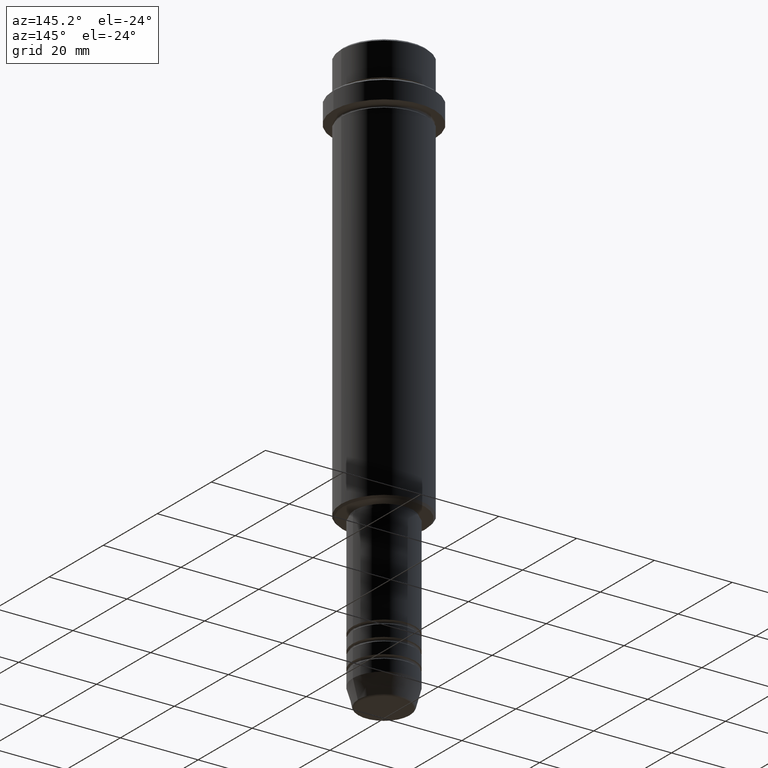
[diagram: clean part render]
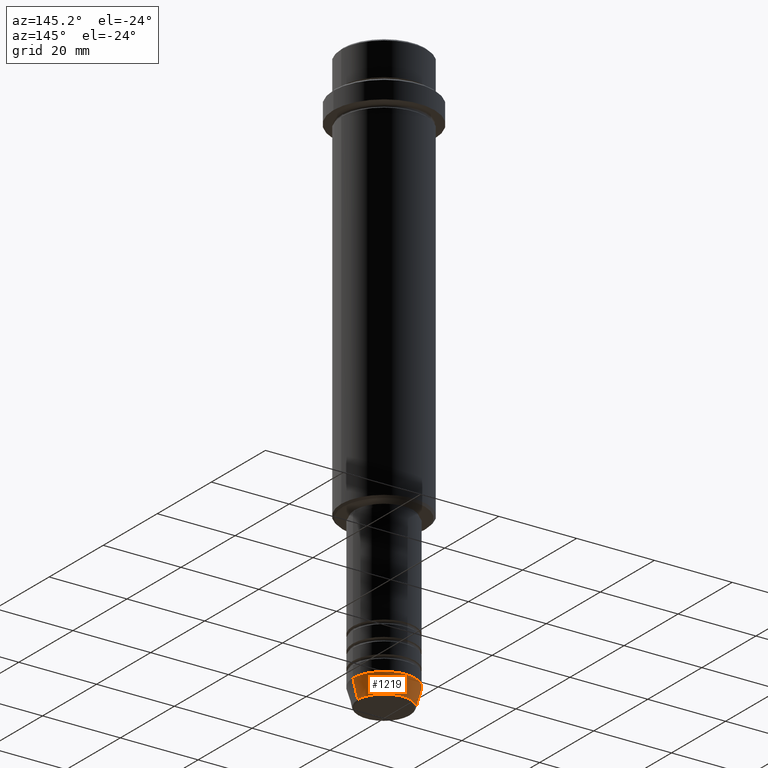
[diagram: same view with one face highlighted and labeled with its STEP entity id]
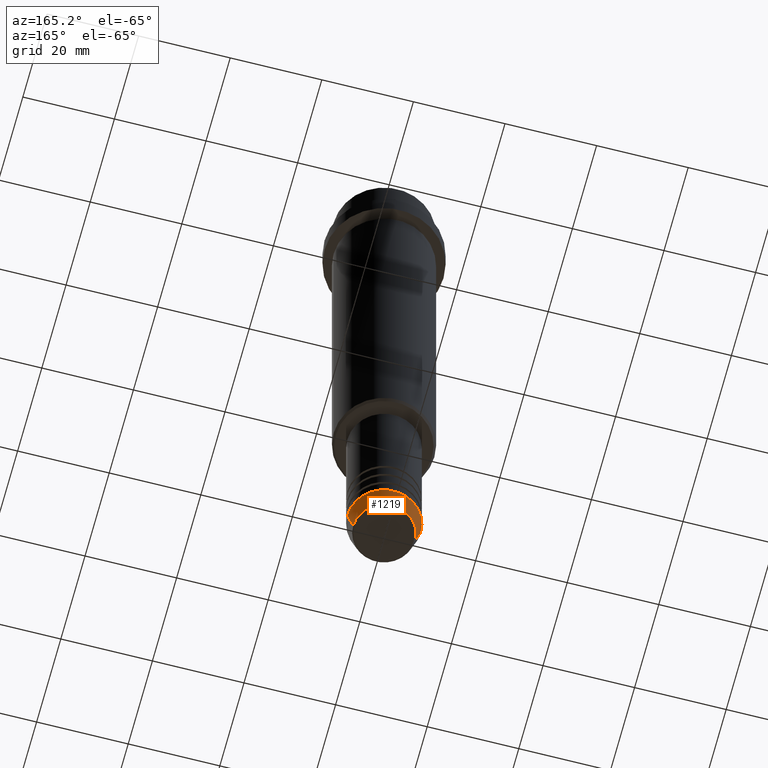
[diagram: same view with one face highlighted and labeled with its STEP entity id]
A machine part, auxiliary view. The second image highlights one B-rep face of the part: STEP entity #1219.
A second angle (auxiliary view) of the same face is appended — the face is thin or edge-on in the first view.
In plain terms, the highlighted conical surface has half-angle 15 deg.
Its self-contained STEP definition (entity closure, byte-faithful):
#2 = CARTESIAN_POINT ( 'NONE',  ( 6.759553456999433330, 0.000000000000000000, -149.6294095225512706 ) ) ;
#33 = CARTESIAN_POINT ( 'NONE',  ( 8.000000000000000000, 0.000000000000000000, -145.0000000000000284 ) ) ;
#35 = DIRECTION ( 'NONE',  ( -0.000000000000000000, -0.000000000000000000, 1.000000000000000000 ) ) ;
#39 = CONICAL_SURFACE ( 'NONE', #1013, 8.000000000000000000, 0.2617993877991500740 ) ;
#152 = VERTEX_POINT ( 'NONE', #2 ) ;
#159 = DIRECTION ( 'NONE',  ( 1.000000000000000000, 0.000000000000000000, 0.000000000000000000 ) ) ;
#167 = EDGE_LOOP ( 'NONE', ( #527, #446, #1398, #1113 ) ) ;
#175 = CARTESIAN_POINT ( 'NONE',  ( 0.000000000000000000, 0.000000000000000000, -145.0000000000000284 ) ) ;
#195 = DIRECTION ( 'NONE',  ( 1.000000000000000000, 0.000000000000000000, 0.000000000000000000 ) ) ;
#200 = VECTOR ( 'NONE', #1218, 1000.000000000000000 ) ;
#268 = EDGE_CURVE ( 'NONE', #152, #490, #828, .T. ) ;
#292 = FACE_OUTER_BOUND ( 'NONE', #167, .T. ) ;
#295 = CARTESIAN_POINT ( 'NONE',  ( -8.000000000000000000, 9.797174393178825657E-16, -145.0000000000000284 ) ) ;
#399 = CARTESIAN_POINT ( 'NONE',  ( 0.000000000000000000, 0.000000000000000000, -145.0000000000000284 ) ) ;
#446 = ORIENTED_EDGE ( 'NONE', *, *, #969, .T. ) ;
#469 = LINE ( 'NONE', #767, #827 ) ;
#482 = CARTESIAN_POINT ( 'NONE',  ( 0.000000000000000000, 0.000000000000000000, -149.6294095225512706 ) ) ;
#490 = VERTEX_POINT ( 'NONE', #1184 ) ;
#527 = ORIENTED_EDGE ( 'NONE', *, *, #268, .T. ) ;
#592 = CIRCLE ( 'NONE', #1042, 8.000000000000000000 ) ;
#608 = DIRECTION ( 'NONE',  ( -0.000000000000000000, -0.000000000000000000, 1.000000000000000000 ) ) ;
#665 = VERTEX_POINT ( 'NONE', #1373 ) ;
#682 = EDGE_CURVE ( 'NONE', #665, #1144, #592, .T. ) ;
#767 = CARTESIAN_POINT ( 'NONE',  ( -8.000000000000000000, 9.797174393178825657E-16, -145.0000000000000284 ) ) ;
#776 = LINE ( 'NONE', #33, #200 ) ;
#818 = DIRECTION ( 'NONE',  ( 1.000000000000000000, 0.000000000000000000, 0.000000000000000000 ) ) ;
#827 = VECTOR ( 'NONE', #1210, 1000.000000000000000 ) ;
#828 = CIRCLE ( 'NONE', #1014, 6.759553456999433330 ) ;
#969 = EDGE_CURVE ( 'NONE', #490, #1144, #469, .T. ) ;
#1013 = AXIS2_PLACEMENT_3D ( 'NONE', #175, #1045, #195 ) ;
#1014 = AXIS2_PLACEMENT_3D ( 'NONE', #482, #608, #159 ) ;
#1042 = AXIS2_PLACEMENT_3D ( 'NONE', #399, #35, #818 ) ;
#1045 = DIRECTION ( 'NONE',  ( -0.000000000000000000, -0.000000000000000000, 1.000000000000000000 ) ) ;
#1113 = ORIENTED_EDGE ( 'NONE', *, *, #1386, .F. ) ;
#1144 = VERTEX_POINT ( 'NONE', #295 ) ;
#1184 = CARTESIAN_POINT ( 'NONE',  ( -6.759553456999433330, 9.037619948979304241E-16, -149.6294095225512706 ) ) ;
#1210 = DIRECTION ( 'NONE',  ( -0.2588190451025213501, 3.169619151431772337E-17, 0.9659258262890680902 ) ) ;
#1218 = DIRECTION ( 'NONE',  ( 0.2588190451025213501, 0.000000000000000000, 0.9659258262890680902 ) ) ;
#1219 = ADVANCED_FACE ( 'NONE', ( #292 ), #39, .T. ) ;
#1373 = CARTESIAN_POINT ( 'NONE',  ( 8.000000000000000000, 0.000000000000000000, -145.0000000000000284 ) ) ;
#1386 = EDGE_CURVE ( 'NONE', #152, #665, #776, .T. ) ;
#1398 = ORIENTED_EDGE ( 'NONE', *, *, #682, .F. ) ;